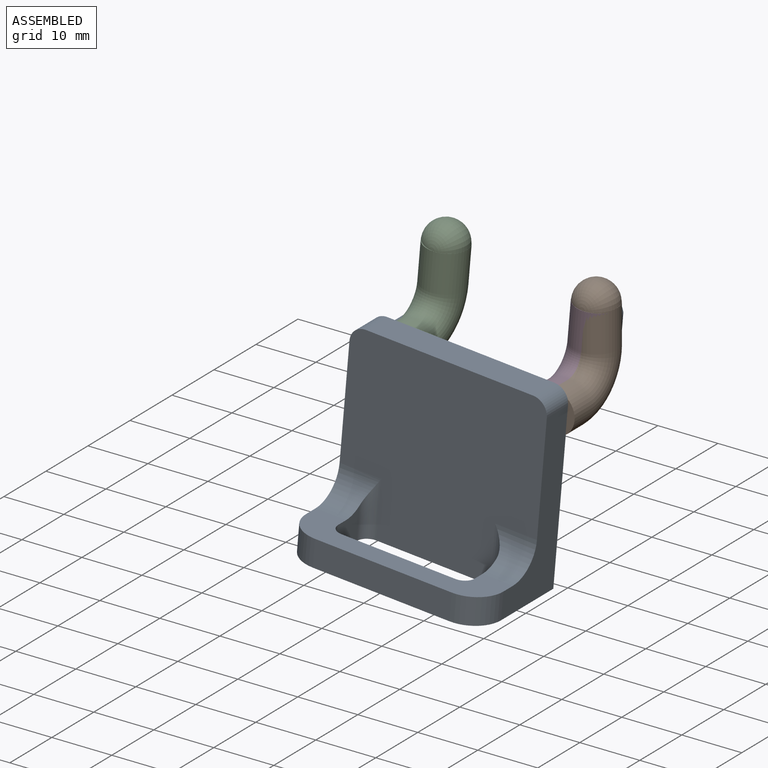
[diagram: assembled view]
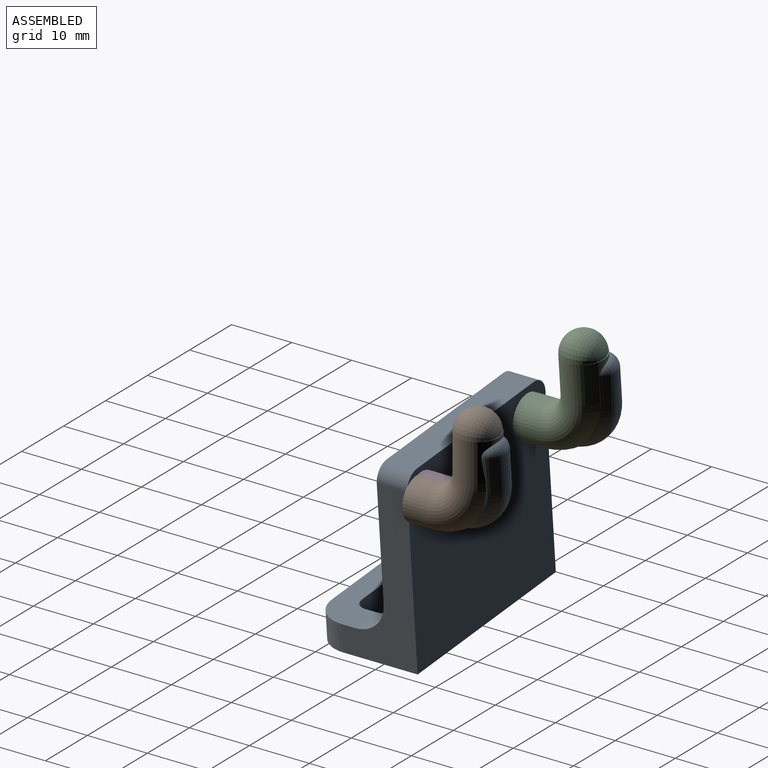
[diagram: assembled view, second angle]
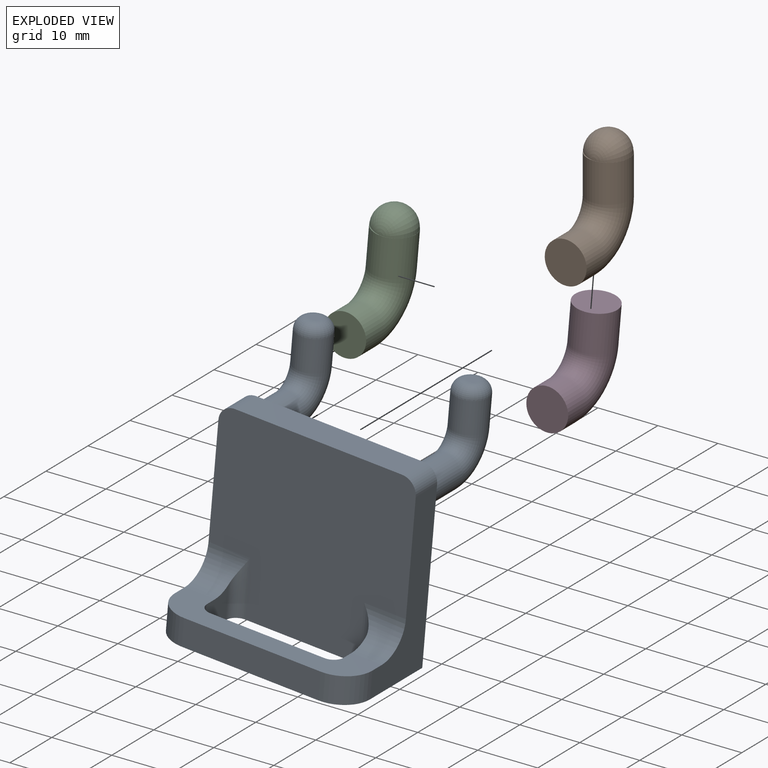
[diagram: exploded view]
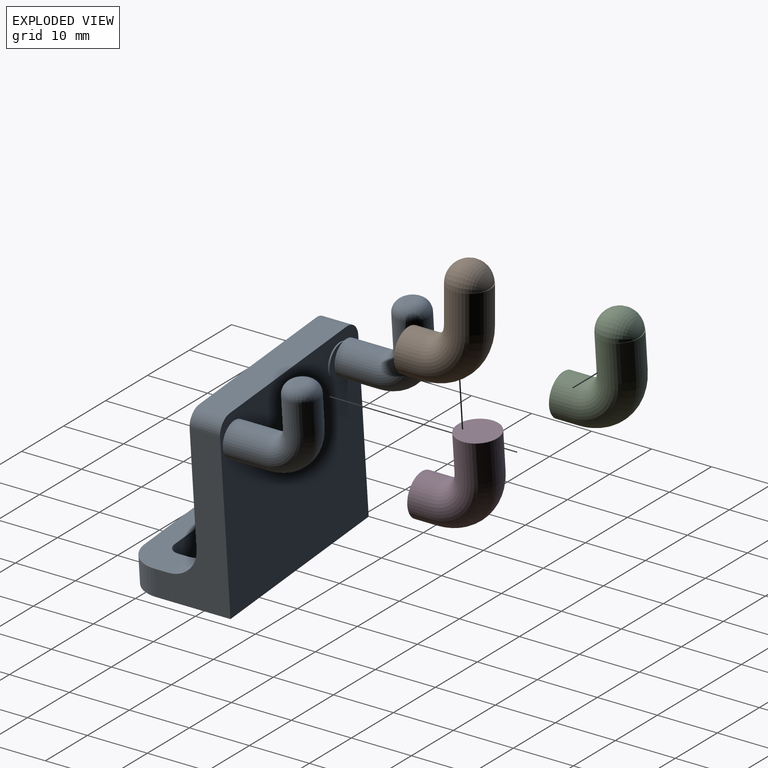
[diagram: exploded view, second angle]
ASSEMBLY  parts=4 mates=2
PART A: 34 faces, bbox 33x32.9x38.8 mm
  f0: plane 33.02x17.53mm, normal (0,0,-1), area 368.4mm2, adj f1,f2,f4,f5,f7,f8,f9,f10
  f1: plane 33.02x30.99mm, normal (0,-1,0), area 887.4mm2, adj f0,f2,f3,f4,f11,f12,f15,f16
  f2: plane 28.45x12.45mm, normal (1,0,0), area 182.8mm2, adj f0,f1,f5,f6,f11,f14,f15
  f3: plane 27.94x5.08mm, normal (0,0,1), area 141.9mm2, adj f1,f5,f15,f16
  f4: plane 28.45x12.45mm, normal (-1,0,0), area 182.8mm2, adj f0,f1,f5,f6,f12,f13,f16
  f5: plane 33.02x30.99mm, normal (0,1,0), area 969.2mm2, adj f0,f2,f3,f4,f15,f16,f17,f18
  f6: plane 33.02x7.37mm, normal (0,0,1), area 147.5mm2, adj f2,f4,f7,f8,f9,f10,f11,f12
  f7: plane 22.86x4.45mm, normal (0,-1,0), area 101.6mm2, adj f0,f6,f13,f14
  f8: plane 19.05x4.45mm, normal (0,1,0), area 84.7mm2, adj f0,f6,f20,f21
  f9: plane 5.56x5.04mm, normal (-1,0,0), area 23.5mm2, adj f0,f6,f11,f20,f23
  f10: plane 5.56x5.04mm, normal (1,0,0), area 23.5mm2, adj f0,f6,f12,f21,f22
  f11: cylinder r=5.08mm len=6.99mm, axis (-1,0,0), area 43.8mm2, adj f1,f2,f6,f9,f23
  f12: cylinder r=5.08mm len=6.99mm, axis (-1,0,0), area 43.8mm2, adj f1,f4,f6,f10,f22
  f13: cylinder r=5.08mm len=5.08mm, axis (0,0,1), area 35.5mm2, adj f0,f4,f6,f7
  f14: cylinder r=5.08mm len=5.08mm, axis (0,0,-1), area 35.5mm2, adj f0,f2,f6,f7
  f15: cylinder r=2.54mm len=5.08mm, axis (0,1,0), area 20.3mm2, adj f1,f2,f3,f5
  f16: cylinder r=2.54mm len=5.08mm, axis (0,-1,0), area 20.3mm2, adj f1,f3,f4,f5
  f17: cylinder r=2.86mm len=6.74mm, axis (0,-1,0), area 121mm2, adj f5,f25
  f18: cylinder r=2.86mm len=5.72mm, axis (0,-1,0), area 4.6mm2, adj f5,f19,f27
  f19: plane 5.72x3.46mm, normal (0,1,0), area 6.8mm2, adj f18,f29
  f20: cylinder r=1.91mm len=4.45mm, axis (0,0,1), area 13.3mm2, adj f0,f6,f8,f9
  f21: cylinder r=1.91mm len=4.45mm, axis (0,0,-1), area 13.3mm2, adj f0,f6,f8,f10
  f22: cylinder r=1.91mm len=9.53mm, axis (0,0,-1), area 21.9mm2, adj f0,f1,f10,f12
  f23: cylinder r=1.91mm len=9.53mm, axis (0,0,1), area 21.9mm2, adj f0,f1,f9,f11
  f24: plane 1.91x1.91mm, normal (0,0,1), area 2.9mm2, adj f32
  f25: torus R=5.08mm, axis (1,0,0), area 143.3mm2, adj f17,f26
  f26: cylinder r=2.86mm len=5.72mm, axis (0,0,1), area 95.3mm2, adj f25,f32
  f27: plane 5.72x3.46mm, normal (0,-1,0), area 6.8mm2, adj f18,f29
  f28: plane 1.91x1.91mm, normal (0,0,1), area 2.9mm2, adj f33
  f29: cylinder r=2.86mm len=6.49mm, axis (0,1,0), area 116.4mm2, adj f19,f27,f30
  f30: torus R=5.08mm, axis (-1,0,0), area 143.3mm2, adj f29,f31
  f31: cylinder r=2.86mm len=5.72mm, axis (0,0,1), area 95.2mm2, adj f30,f33
  f32: torus R=0.96mm, axis (0,0,1), area 40.7mm2, adj f24,f26
  f33: torus R=0.95mm, axis (0,0,1), area 40.7mm2, adj f28,f31
PART B: 7 faces, bbox 7x14.5x17.4 mm
  f0: torus R=0.05mm, axis (0,1,0), area 73.5mm2, adj f1,f2
  f1: plane 6.86x3.47mm, normal (-0.09,0,-1), area 18.8mm2, adj f0,f2
  f2: plane 6.99x6.99mm, normal (0,0,1), area 19.5mm2, adj f0,f1,f4
  f3: plane 6.99x6.99mm, normal (0,-1,0), area 38.3mm2, adj f6
  f4: cylinder r=3.49mm len=6.99mm, axis (0,0,-1), area 139.4mm2, adj f2,f5
  f5: torus R=6.43mm, axis (-1,0,0), area 221.5mm2, adj f4,f6
  f6: cylinder r=3.49mm len=6.99mm, axis (0,-1,0), area 81.9mm2, adj f3,f5
PART C: same geometry as B
PART D: 5 faces, bbox 7x14.4x17 mm
  f0: plane 6.99x6.99mm, normal (0,-1,0), area 38.3mm2, adj f2
  f1: plane 6.99x6.99mm, normal (0,0,1), area 38.3mm2, adj f4
  f2: cylinder r=3.49mm len=6.99mm, axis (0,1,0), area 81.9mm2, adj f0,f3
  f3: torus R=6.35mm, axis (1,0,0), area 218.8mm2, adj f2,f4
  f4: cylinder r=3.49mm len=6.99mm, axis (0,0,1), area 139.4mm2, adj f1,f3
PLACE A rot(axis=(0,1,0),5deg) t=(-36.68,16.89,-0.34)mm
PLACE B t=(-20.14,16.83,37.63)mm
PLACE C rot(axis=(0,1,0),5deg) t=(-45.23,16.91,39.9)mm
PLACE D rot(axis=(0,1,0),5deg) t=(-20.14,16.89,37.63)mm
MATE fastened D.f4 <-> B.f1  axis (0.09,0,1) through (-20.14,26.97,37.63)mm
MATE fastened D.f2 <-> A.f17  axis (0,1,0) through (-21.24,16.89,24.97)mm
